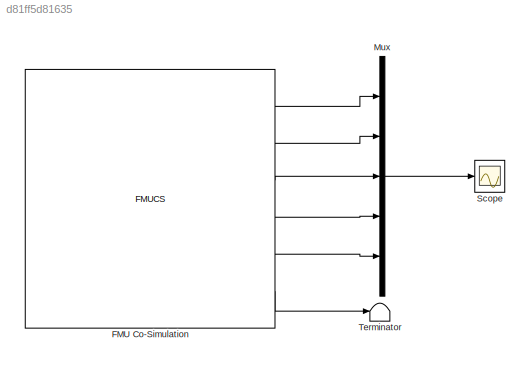
MODEL slx_d81ff5d81635
KIND model
CONFIG AbsTol = auto
CONFIG FixedStep = auto
CONFIG MaxStep = auto
CONFIG MinStep = auto
CONFIG RelTol = 1e-3
CONFIG SampleTimeConstraint = Unconstrained
CONFIG Solver = ode45
CONFIG SolverMode = Auto
CONFIG SolverName = ode45
CONFIG StartTime = 0.0
CONFIG StopTime = 10.0
BLOCK [FMUCS] FMU Co-Simulation
  FMUName = Baseline_FMI2.fmu
  FMUSampleTime = 0.001
  MaskDisplay = if (exist('<path>','file'))\n    image('<path>');\n    text(0.03, 0.97, 'CarSim FMU -- FMI2.0', 'horizontalAlignment', 'left', 'verticalAlignment', 'top');\nelse\n    disp('CarSim FMU -- FMI2.0');\nend\nport_la...<+186ch>
  MaskType = CarSim FMU -- FMI2.0[Co-Simulation, v2.0]
  Ports = [0, 6]
BLOCK [Mux] Mux
  DisplayOption = bar
  Inputs = 5
  Ports = [5, 1]
BLOCK [Scope] Scope
  Ports = [1]
  ScopeSpecificationString = Simulink.scopes.TimeScopeBlockCfg('CurrentConfiguration', extmgr.ConfigurationSet(extmgr.Configuration('Core','General UI',true),extmgr.Configuration('Core','Source UI',true),extmgr.Configuration('Sources','WiredSimulink',true,'DataLoggingMaxPoints','50000','DataLoggingLimitDataPoints',true,'DataLoggingSaveFormat','Array','DataLoggingDecimation','1','DataLoggingDecimateData',true),extmgr.Configura...<+1658ch>
BLOCK [Terminator] Terminator
LINE FMU Co-Simulation:1 -> Mux:1
LINE FMU Co-Simulation:2 -> Mux:2
LINE FMU Co-Simulation:3 -> Mux:3
LINE FMU Co-Simulation:4 -> Mux:4
LINE FMU Co-Simulation:5 -> Mux:5
LINE FMU Co-Simulation:6 -> Terminator:1
LINE Mux:1 -> Scope:1
note: 2 file-system paths scrubbed to <path> (not preserved elsewhere — flat text is the only slx artifact)
